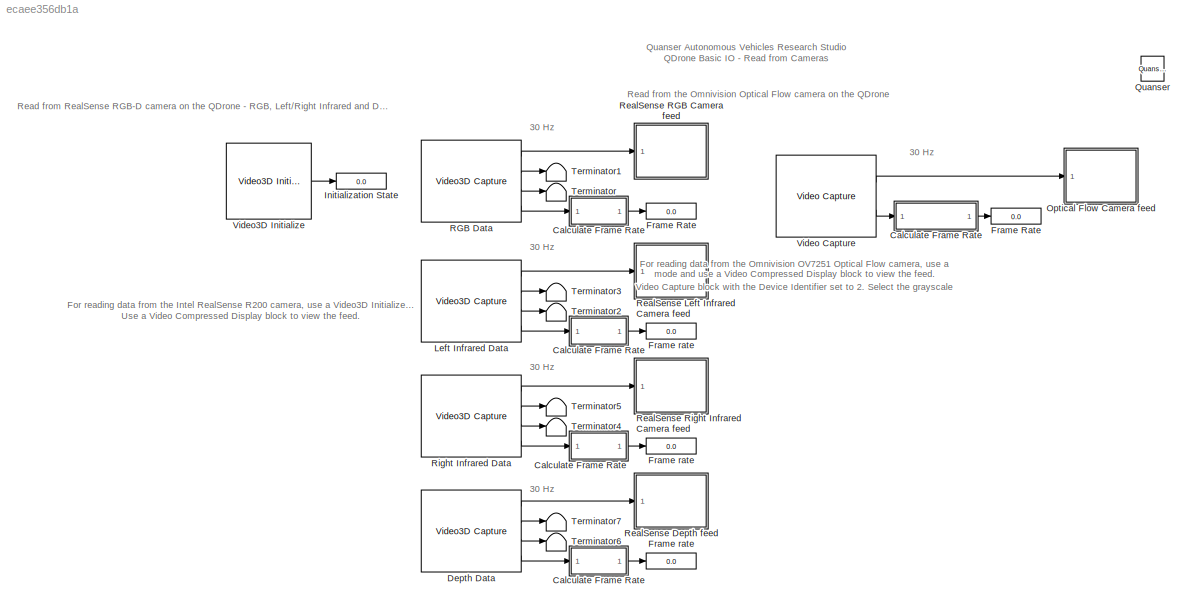
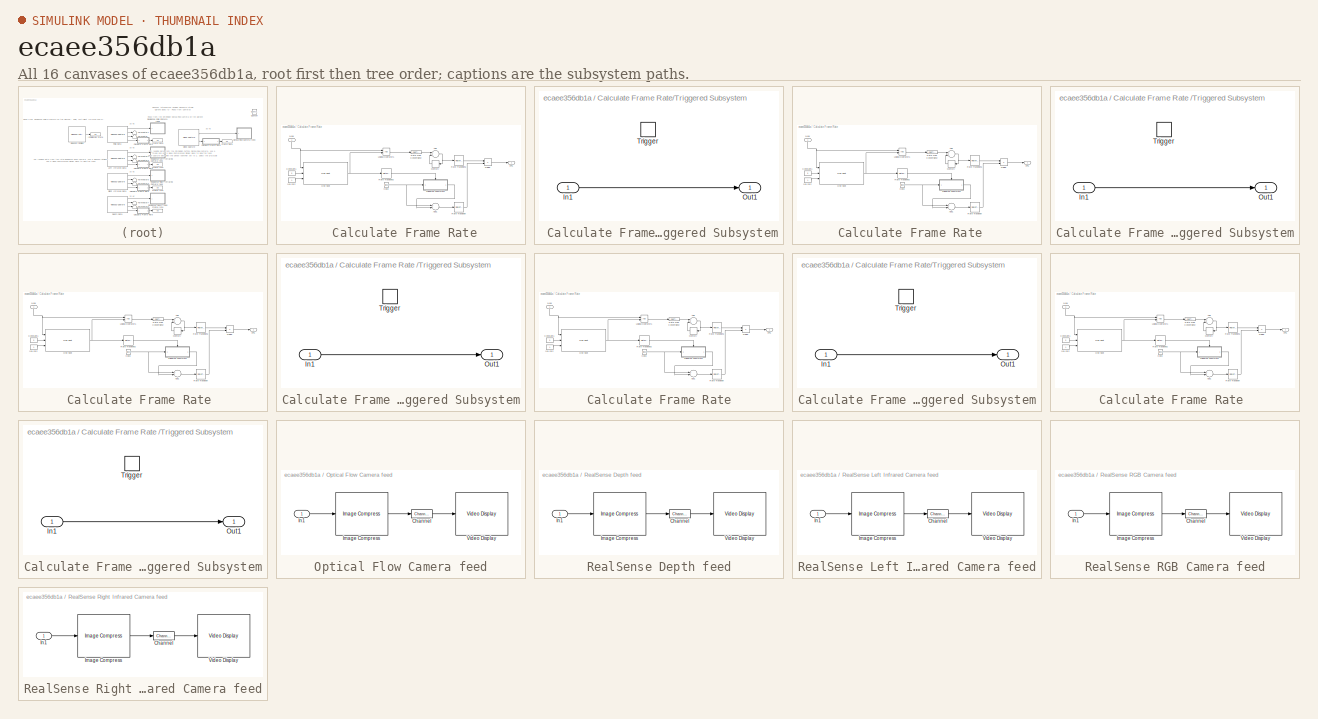
[diagram: thumbnail index - all 16 canvases of the model, root first then tree order]
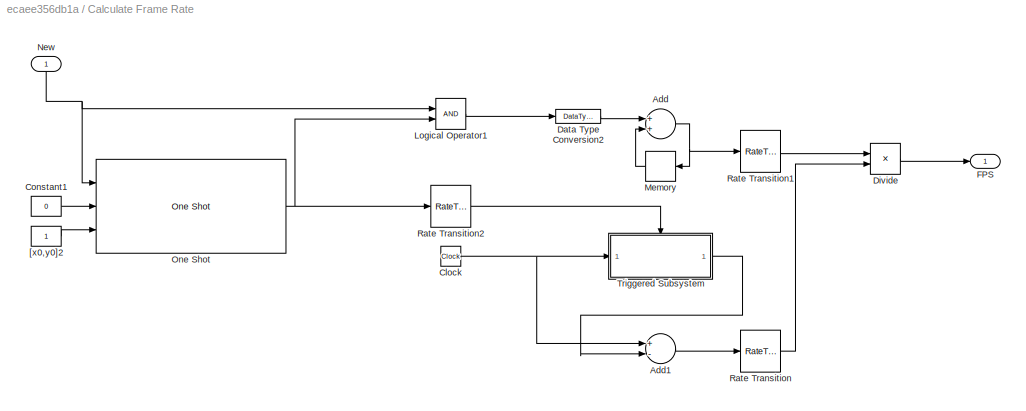
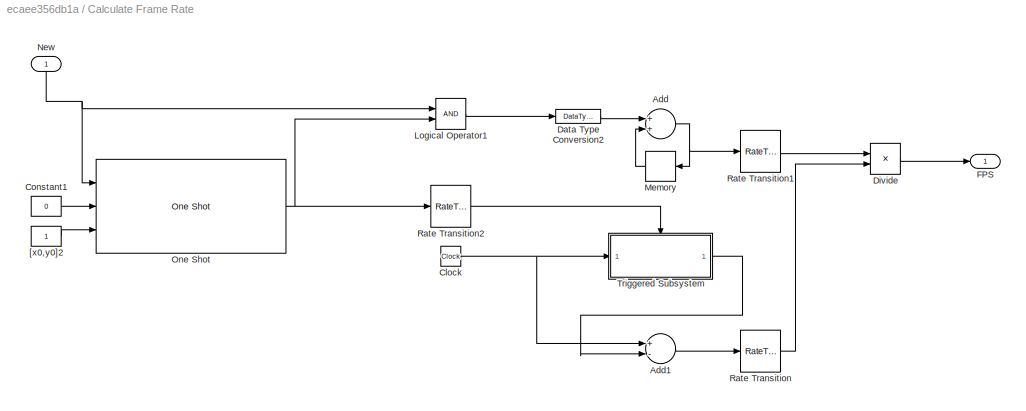
MODEL slx_ecaee356db1a
KIND model
CONFIG AbsTol = auto
CONFIG EnableMultiTasking = on
CONFIG FixedStep = 0.001
CONFIG MaxStep = auto
CONFIG MinStep = auto
CONFIG RelTol = 1e-3
CONFIG SampleTimeConstraint = Unconstrained
CONFIG Solver = ode2
CONFIG SolverName = ode2
CONFIG StartTime = 0.0
CONFIG StopTime = inf
WORKSPACE source: MAT-file member
WORKSPACE target_system = 1
BLOCK [Display]    Frame rate   
  Decimation = 1
  Ports = [1]
BLOCK [Display]   Frame Rate 
  Decimation = 1
  Ports = [1]
BLOCK [Display]   Frame rate  
  Decimation = 1
  Ports = [1]
BLOCK [SubSystem]  Calculate Frame Rate
  Ports = [1, 1]
  RequestExecContextInheritance = off
  Variant = off
BLOCK [Sum]  Calculate Frame Rate/Add
  InputSameDT = off
  OutDataTypeStr = Inherit: Inherit via internal rule
  Ports = [2, 1]
  SaturateOnIntegerOverflow = off
BLOCK [Sum]  Calculate Frame Rate/Add1
  InputSameDT = off
  Inputs = +-
  OutDataTypeStr = Inherit: Inherit via internal rule
  Ports = [2, 1]
  SaturateOnIntegerOverflow = off
BLOCK [Clock]  Calculate Frame Rate/Clock
  Decimation = 1
BLOCK [Constant]  Calculate Frame Rate/Constant1
  Value = 0
BLOCK [DataTypeConversion]  Calculate Frame Rate/Data Type Conversion2
  RndMeth = Floor
  SaturateOnIntegerOverflow = off
BLOCK [Product]  Calculate Frame Rate/Divide
  InputSameDT = off
  Inputs = */
  OutDataTypeStr = Inherit: Inherit via internal rule
  Ports = [2, 1]
  RndMeth = Floor
  SaturateOnIntegerOverflow = off
BLOCK [Outport]  Calculate Frame Rate/FPS
  IconDisplay = Port number
BLOCK [Logic]  Calculate Frame Rate/Logical Operator1
  AllPortsSameDT = off
  OutDataTypeStr = boolean
  Ports = [2, 1]
BLOCK [Memory]  Calculate Frame Rate/Memory
  InheritSampleTime = on
BLOCK [Inport]  Calculate Frame Rate/New
  IconDisplay = Port number
BLOCK [Reference]  Calculate Frame Rate/One Shot  REF=quarc_library/Discontinuities/One Shot
  Ports = [3, 1]
  SourceBlock = quarc_library/Discontinuities/One Shot
  SourceProductName = QUARC Targets
  SourceType = One Shot
BLOCK [RateTransition]  Calculate Frame Rate/Rate Transition
BLOCK [RateTransition]  Calculate Frame Rate/Rate Transition1
BLOCK [RateTransition]  Calculate Frame Rate/Rate Transition2
BLOCK [SubSystem]  Calculate Frame Rate/Triggered Subsystem
  Ports = [1, 1, 0, 1]
  RequestExecContextInheritance = off
  TreatAsAtomicUnit = on
  Variant = off
BLOCK [Inport]  Calculate Frame Rate/Triggered Subsystem/In1
  IconDisplay = Port number
BLOCK [Outport]  Calculate Frame Rate/Triggered Subsystem/Out1
  IconDisplay = Port number
BLOCK [TriggerPort]  Calculate Frame Rate/Triggered Subsystem/Trigger
  Ports = []
  StatesWhenEnabling = held
  VariantControl = Variant
BLOCK [Constant]  Calculate Frame Rate/[x0,y0]2
BLOCK [Display]  Frame rate 
  Decimation = 1
  Ports = [1]
BLOCK [SubSystem] Calculate Frame Rate
  Ports = [1, 1]
  RequestExecContextInheritance = off
  Variant = off
BLOCK [SubSystem] Calculate Frame Rate 
  Ports = [1, 1]
  RequestExecContextInheritance = off
  Variant = off
BLOCK [SubSystem] Calculate Frame Rate  
  Ports = [1, 1]
  RequestExecContextInheritance = off
  Variant = off
BLOCK [Sum] Calculate Frame Rate  /Add
  InputSameDT = off
  OutDataTypeStr = Inherit: Inherit via internal rule
  Ports = [2, 1]
  SaturateOnIntegerOverflow = off
BLOCK [Sum] Calculate Frame Rate  /Add1
  InputSameDT = off
  Inputs = +-
  OutDataTypeStr = Inherit: Inherit via internal rule
  Ports = [2, 1]
  SaturateOnIntegerOverflow = off
BLOCK [Clock] Calculate Frame Rate  /Clock
  Decimation = 1
BLOCK [Constant] Calculate Frame Rate  /Constant1
  Value = 0
BLOCK [DataTypeConversion] Calculate Frame Rate  /Data Type Conversion2
  RndMeth = Floor
  SaturateOnIntegerOverflow = off
BLOCK [Product] Calculate Frame Rate  /Divide
  InputSameDT = off
  Inputs = */
  OutDataTypeStr = Inherit: Inherit via internal rule
  Ports = [2, 1]
  RndMeth = Floor
  SaturateOnIntegerOverflow = off
BLOCK [Outport] Calculate Frame Rate  /FPS
  IconDisplay = Port number
BLOCK [Logic] Calculate Frame Rate  /Logical Operator1
  AllPortsSameDT = off
  OutDataTypeStr = boolean
  Ports = [2, 1]
BLOCK [Memory] Calculate Frame Rate  /Memory
  InheritSampleTime = on
BLOCK [Inport] Calculate Frame Rate  /New
  IconDisplay = Port number
BLOCK [Reference] Calculate Frame Rate  /One Shot  REF=quarc_library/Discontinuities/One Shot
  Ports = [3, 1]
  SourceBlock = quarc_library/Discontinuities/One Shot
  SourceProductName = QUARC Targets
  SourceType = One Shot
BLOCK [RateTransition] Calculate Frame Rate  /Rate Transition
BLOCK [RateTransition] Calculate Frame Rate  /Rate Transition1
BLOCK [RateTransition] Calculate Frame Rate  /Rate Transition2
BLOCK [SubSystem] Calculate Frame Rate  /Triggered Subsystem
  Ports = [1, 1, 0, 1]
  RequestExecContextInheritance = off
  TreatAsAtomicUnit = on
  Variant = off
BLOCK [Inport] Calculate Frame Rate  /Triggered Subsystem/In1
  IconDisplay = Port number
BLOCK [Outport] Calculate Frame Rate  /Triggered Subsystem/Out1
  IconDisplay = Port number
BLOCK [TriggerPort] Calculate Frame Rate  /Triggered Subsystem/Trigger
  Ports = []
  StatesWhenEnabling = held
  VariantControl = Variant
BLOCK [Constant] Calculate Frame Rate  /[x0,y0]2
BLOCK [Sum] Calculate Frame Rate /Add
  InputSameDT = off
  OutDataTypeStr = Inherit: Inherit via internal rule
  Ports = [2, 1]
  SaturateOnIntegerOverflow = off
BLOCK [Sum] Calculate Frame Rate /Add1
  InputSameDT = off
  Inputs = +-
  OutDataTypeStr = Inherit: Inherit via internal rule
  Ports = [2, 1]
  SaturateOnIntegerOverflow = off
BLOCK [Clock] Calculate Frame Rate /Clock
  Decimation = 1
BLOCK [Constant] Calculate Frame Rate /Constant1
  Value = 0
BLOCK [DataTypeConversion] Calculate Frame Rate /Data Type Conversion2
  RndMeth = Floor
  SaturateOnIntegerOverflow = off
BLOCK [Product] Calculate Frame Rate /Divide
  InputSameDT = off
  Inputs = */
  OutDataTypeStr = Inherit: Inherit via internal rule
  Ports = [2, 1]
  RndMeth = Floor
  SaturateOnIntegerOverflow = off
BLOCK [Outport] Calculate Frame Rate /FPS
  IconDisplay = Port number
BLOCK [Logic] Calculate Frame Rate /Logical Operator1
  AllPortsSameDT = off
  OutDataTypeStr = boolean
  Ports = [2, 1]
BLOCK [Memory] Calculate Frame Rate /Memory
  InheritSampleTime = on
BLOCK [Inport] Calculate Frame Rate /New
  IconDisplay = Port number
BLOCK [Reference] Calculate Frame Rate /One Shot  REF=quarc_library/Discontinuities/One Shot
  Ports = [3, 1]
  SourceBlock = quarc_library/Discontinuities/One Shot
  SourceProductName = QUARC Targets
  SourceType = One Shot
BLOCK [RateTransition] Calculate Frame Rate /Rate Transition
BLOCK [RateTransition] Calculate Frame Rate /Rate Transition1
BLOCK [RateTransition] Calculate Frame Rate /Rate Transition2
BLOCK [SubSystem] Calculate Frame Rate /Triggered Subsystem
  Ports = [1, 1, 0, 1]
  RequestExecContextInheritance = off
  TreatAsAtomicUnit = on
  Variant = off
BLOCK [Inport] Calculate Frame Rate /Triggered Subsystem/In1
  IconDisplay = Port number
BLOCK [Outport] Calculate Frame Rate /Triggered Subsystem/Out1
  IconDisplay = Port number
BLOCK [TriggerPort] Calculate Frame Rate /Triggered Subsystem/Trigger
  Ports = []
  StatesWhenEnabling = held
  VariantControl = Variant
BLOCK [Constant] Calculate Frame Rate /[x0,y0]2
BLOCK [Sum] Calculate Frame Rate/Add
  InputSameDT = off
  OutDataTypeStr = Inherit: Inherit via internal rule
  Ports = [2, 1]
  SaturateOnIntegerOverflow = off
BLOCK [Sum] Calculate Frame Rate/Add1
  InputSameDT = off
  Inputs = +-
  OutDataTypeStr = Inherit: Inherit via internal rule
  Ports = [2, 1]
  SaturateOnIntegerOverflow = off
BLOCK [Clock] Calculate Frame Rate/Clock
  Decimation = 1
BLOCK [Constant] Calculate Frame Rate/Constant1
  Value = 0
BLOCK [DataTypeConversion] Calculate Frame Rate/Data Type Conversion2
  RndMeth = Floor
  SaturateOnIntegerOverflow = off
BLOCK [Product] Calculate Frame Rate/Divide
  InputSameDT = off
  Inputs = */
  OutDataTypeStr = Inherit: Inherit via internal rule
  Ports = [2, 1]
  RndMeth = Floor
  SaturateOnIntegerOverflow = off
BLOCK [Outport] Calculate Frame Rate/FPS
  IconDisplay = Port number
BLOCK [Logic] Calculate Frame Rate/Logical Operator1
  AllPortsSameDT = off
  OutDataTypeStr = boolean
  Ports = [2, 1]
BLOCK [Memory] Calculate Frame Rate/Memory
  InheritSampleTime = on
BLOCK [Inport] Calculate Frame Rate/New
  IconDisplay = Port number
BLOCK [Reference] Calculate Frame Rate/One Shot  REF=quarc_library/Discontinuities/One Shot
  Ports = [3, 1]
  SourceBlock = quarc_library/Discontinuities/One Shot
  SourceProductName = QUARC Targets
  SourceType = One Shot
BLOCK [RateTransition] Calculate Frame Rate/Rate Transition
BLOCK [RateTransition] Calculate Frame Rate/Rate Transition1
BLOCK [RateTransition] Calculate Frame Rate/Rate Transition2
BLOCK [SubSystem] Calculate Frame Rate/Triggered Subsystem
  Ports = [1, 1, 0, 1]
  RequestExecContextInheritance = off
  TreatAsAtomicUnit = on
  Variant = off
BLOCK [Inport] Calculate Frame Rate/Triggered Subsystem/In1
  IconDisplay = Port number
BLOCK [Outport] Calculate Frame Rate/Triggered Subsystem/Out1
  IconDisplay = Port number
BLOCK [TriggerPort] Calculate Frame Rate/Triggered Subsystem/Trigger
  Ports = []
  StatesWhenEnabling = held
  VariantControl = Variant
BLOCK [Constant] Calculate Frame Rate/[x0,y0]2
BLOCK [Reference] Depth Data  REF=quarc_library/Multimedia/Video3D Capture
  Ports = [0, 4]
  SourceBlock = quarc_library/Multimedia/Video3D Capture
  SourceProductName = QUARC Targets
  SourceType = Video3D Capture
  UserDataPersistent = on
BLOCK [Display] Frame Rate
  Decimation = 1
  Ports = [1]
BLOCK [Display] Initialization State
  Decimation = 1
  Ports = [1]
BLOCK [Reference] Left Infrared Data  REF=quarc_library/Multimedia/Video3D Capture
  Ports = [0, 4]
  SourceBlock = quarc_library/Multimedia/Video3D Capture
  SourceProductName = QUARC Targets
  SourceType = Video3D Capture
  UserDataPersistent = on
BLOCK [SubSystem] Optical Flow Camera feed
  CopyFcn = set_param(gcbh, 'UserData', gcb);\nset_param(gcbh, 'LinkStatus', 'none');
  LoadFcn = set_param(gcbh, 'UserData', gcb);
  NameChangeFcn = video_display_show([get_param(gcbh, 'UserData'), '/Video Display'], 'rename', [gcb, '/Video Display']);\nvideo_display_show([gcb, '/Video Display'], 'add', gcb);\nset_param(gcbh, 'UserData', gcb);  <repeated x5 — deduplicated; at blocks: Optical Flow Camera feed, RealSense Depth feed, RealSense Left Infrared Camera feed, RealSense RGB Camera feed, RealSense Right Infrared Camera feed>
  OpenFcn = video_display_show([gcb, '/Video Display'], 'show', gcb);
  Ports = [1]
  PreDeleteFcn = video_display_show([gcb, '/Video Display'], 'delete');
  RequestExecContextInheritance = off
  StartFcn = video_display_show([gcb, '/Video Display'], 'add', gcb);
  UndoDeleteFcn = set_param(gcbh, 'UserData', gcb);
  Variant = off
BLOCK [Reference] Optical Flow Camera feed/Channel  REF=quarc_library/Signal Routing/Channel
  Ports = [1, 1]
  SourceBlock = quarc_library/Signal Routing/Channel
  SourceProductName = QUARC Targets
  SourceType = Channel
BLOCK [Reference] Optical Flow Camera feed/Image Compress  REF=quarc_library/Image Processing/Generic/Image Compress
  AttributesFormatString = (%<algorithm>)
  Ports = [1, 1]
  SourceBlock = quarc_library/Image Processing/Generic/Image Compress
  SourceProductName = QUARC Targets
  SourceType = Image Compress
BLOCK [Inport] Optical Flow Camera feed/In1
  IconDisplay = Port number
BLOCK [Reference] Optical Flow Camera feed/Video Display  REF=quarc_library/Multimedia/Video Display
  Ports = [1]
  SourceBlock = quarc_library/Multimedia/Video Display
  SourceProductName = QUARC Targets
  SourceType = Video Display
  Tag = Read_Cameras/Optical Flow Camera feed/Video Display
  UserDataPersistent = on
BLOCK [Reference] Quanser  REF=quarc_library/Logos/Quanser
  Ports = []
  SourceBlock = quarc_library/Logos/Quanser
  SourceProductName = QUARC Targets
  SourceType = Powered by Quanser
BLOCK [Reference] RGB Data  REF=quarc_library/Multimedia/Video3D Capture
  Ports = [0, 4]
  SourceBlock = quarc_library/Multimedia/Video3D Capture
  SourceProductName = QUARC Targets
  SourceType = Video3D Capture
  UserDataPersistent = on
BLOCK [SubSystem] RealSense Depth feed
  CopyFcn = set_param(gcbh, 'UserData', gcb);\nset_param(gcbh, 'LinkStatus', 'none');
  LoadFcn = set_param(gcbh, 'UserData', gcb);
  OpenFcn = video_display_show([gcb, '/Video Display'], 'show', gcb);
  Ports = [1]
  PreDeleteFcn = video_display_show([gcb, '/Video Display'], 'delete');
  RequestExecContextInheritance = off
  StartFcn = video_display_show([gcb, '/Video Display'], 'add', gcb);
  UndoDeleteFcn = set_param(gcbh, 'UserData', gcb);
  Variant = off
BLOCK [Reference] RealSense Depth feed/Channel  REF=quarc_library/Signal Routing/Channel
  Ports = [1, 1]
  SourceBlock = quarc_library/Signal Routing/Channel
  SourceProductName = QUARC Targets
  SourceType = Channel
BLOCK [Reference] RealSense Depth feed/Image Compress  REF=quarc_library/Image Processing/Generic/Image Compress
  AttributesFormatString = (%<algorithm>)
  Ports = [1, 1]
  SourceBlock = quarc_library/Image Processing/Generic/Image Compress
  SourceProductName = QUARC Targets
  SourceType = Image Compress
BLOCK [Inport] RealSense Depth feed/In1
  IconDisplay = Port number
BLOCK [Reference] RealSense Depth feed/Video Display  REF=quarc_library/Multimedia/Video Display
  Ports = [1]
  SourceBlock = quarc_library/Multimedia/Video Display
  SourceProductName = QUARC Targets
  SourceType = Video Display
  Tag = Read_Cameras/RealSense Depth feed/Video Display
  UserDataPersistent = on
BLOCK [SubSystem] RealSense Left Infrared Camera feed
  CopyFcn = set_param(gcbh, 'UserData', gcb);\nset_param(gcbh, 'LinkStatus', 'none');
  LoadFcn = set_param(gcbh, 'UserData', gcb);
  OpenFcn = video_display_show([gcb, '/Video Display'], 'show', gcb);
  Ports = [1]
  PreDeleteFcn = video_display_show([gcb, '/Video Display'], 'delete');
  RequestExecContextInheritance = off
  StartFcn = video_display_show([gcb, '/Video Display'], 'add', gcb);
  UndoDeleteFcn = set_param(gcbh, 'UserData', gcb);
  Variant = off
BLOCK [Reference] RealSense Left Infrared Camera feed/Channel  REF=quarc_library/Signal Routing/Channel
  Ports = [1, 1]
  SourceBlock = quarc_library/Signal Routing/Channel
  SourceProductName = QUARC Targets
  SourceType = Channel
BLOCK [Reference] RealSense Left Infrared Camera feed/Image Compress  REF=quarc_library/Image Processing/Generic/Image Compress
  AttributesFormatString = (%<algorithm>)
  Ports = [1, 1]
  SourceBlock = quarc_library/Image Processing/Generic/Image Compress
  SourceProductName = QUARC Targets
  SourceType = Image Compress
BLOCK [Inport] RealSense Left Infrared Camera feed/In1
  IconDisplay = Port number
BLOCK [Reference] RealSense Left Infrared Camera feed/Video Display  REF=quarc_library/Multimedia/Video Display
  Ports = [1]
  SourceBlock = quarc_library/Multimedia/Video Display
  SourceProductName = QUARC Targets
  SourceType = Video Display
  Tag = Read_Cameras/RealSense Left Infrared Camera feed/Video Display
  UserDataPersistent = on
BLOCK [SubSystem] RealSense RGB Camera feed
  CopyFcn = set_param(gcbh, 'UserData', gcb);\nset_param(gcbh, 'LinkStatus', 'none');
  LoadFcn = set_param(gcbh, 'UserData', gcb);
  OpenFcn = video_display_show([gcb, '/Video Display'], 'show', gcb);
  Ports = [1]
  PreDeleteFcn = video_display_show([gcb, '/Video Display'], 'delete');
  RequestExecContextInheritance = off
  StartFcn = video_display_show([gcb, '/Video Display'], 'add', gcb);
  UndoDeleteFcn = set_param(gcbh, 'UserData', gcb);
  Variant = off
BLOCK [Reference] RealSense RGB Camera feed/Channel  REF=quarc_library/Signal Routing/Channel
  Ports = [1, 1]
  SourceBlock = quarc_library/Signal Routing/Channel
  SourceProductName = QUARC Targets
  SourceType = Channel
BLOCK [Reference] RealSense RGB Camera feed/Image Compress  REF=quarc_library/Image Processing/Generic/Image Compress
  AttributesFormatString = (%<algorithm>)
  Ports = [1, 1]
  SourceBlock = quarc_library/Image Processing/Generic/Image Compress
  SourceProductName = QUARC Targets
  SourceType = Image Compress
BLOCK [Inport] RealSense RGB Camera feed/In1
  IconDisplay = Port number
BLOCK [Reference] RealSense RGB Camera feed/Video Display  REF=quarc_library/Multimedia/Video Display
  Ports = [1]
  SourceBlock = quarc_library/Multimedia/Video Display
  SourceProductName = QUARC Targets
  SourceType = Video Display
  Tag = Read_Cameras/RealSense RGB Camera feed/Video Display
  UserDataPersistent = on
BLOCK [SubSystem] RealSense Right Infrared Camera feed
  CopyFcn = set_param(gcbh, 'UserData', gcb);\nset_param(gcbh, 'LinkStatus', 'none');
  LoadFcn = set_param(gcbh, 'UserData', gcb);
  OpenFcn = video_display_show([gcb, '/Video Display'], 'show', gcb);
  Ports = [1]
  PreDeleteFcn = video_display_show([gcb, '/Video Display'], 'delete');
  RequestExecContextInheritance = off
  StartFcn = video_display_show([gcb, '/Video Display'], 'add', gcb);
  UndoDeleteFcn = set_param(gcbh, 'UserData', gcb);
  Variant = off
BLOCK [Reference] RealSense Right Infrared Camera feed/Channel  REF=quarc_library/Signal Routing/Channel
  Ports = [1, 1]
  SourceBlock = quarc_library/Signal Routing/Channel
  SourceProductName = QUARC Targets
  SourceType = Channel
BLOCK [Reference] RealSense Right Infrared Camera feed/Image Compress  REF=quarc_library/Image Processing/Generic/Image Compress
  AttributesFormatString = (%<algorithm>)
  Ports = [1, 1]
  SourceBlock = quarc_library/Image Processing/Generic/Image Compress
  SourceProductName = QUARC Targets
  SourceType = Image Compress
BLOCK [Inport] RealSense Right Infrared Camera feed/In1
  IconDisplay = Port number
BLOCK [Reference] RealSense Right Infrared Camera feed/Video Display  REF=quarc_library/Multimedia/Video Display
  Ports = [1]
  SourceBlock = quarc_library/Multimedia/Video Display
  SourceProductName = QUARC Targets
  SourceType = Video Display
  Tag = Read_Cameras/RealSense Right Infrared Camera feed/Video Display
  UserDataPersistent = on
BLOCK [Reference] Right Infrared Data  REF=quarc_library/Multimedia/Video3D Capture
  Ports = [0, 4]
  SourceBlock = quarc_library/Multimedia/Video3D Capture
  SourceProductName = QUARC Targets
  SourceType = Video3D Capture
  UserDataPersistent = on
BLOCK [Terminator] Terminator
BLOCK [Terminator] Terminator1
BLOCK [Terminator] Terminator2
BLOCK [Terminator] Terminator3
BLOCK [Terminator] Terminator4
BLOCK [Terminator] Terminator5
BLOCK [Terminator] Terminator6
BLOCK [Terminator] Terminator7
BLOCK [Reference] Video Capture  REF=quarc_library/Multimedia/Video Capture
  Ports = [0, 2]
  SourceBlock = quarc_library/Multimedia/Video Capture
  SourceProductName = QUARC Targets
  SourceType = Video Capture
BLOCK [Reference] Video3D Initialize  REF=quarc_library/Multimedia/Video3D Initialize
  Ports = [0, 1]
  SourceBlock = quarc_library/Multimedia/Video3D Initialize
  SourceProductName = QUARC Targets
  SourceType = Video3D Initialize
ANNOTATION (root): 30 Hz
ANNOTATION (root): Quanser Autonomous Vehicles Research Studio QDrone Basic IO - Read from Cameras
ANNOTATION (root): For reading data from the Intel RealSense R200 camera, use a Video3D Initialize block with the Device Identifier set to 0. Add Video3D Capture blocks as required and select the corresponding channel you want to view (RGB, Depth, Infrared, etc). Use a Video Compressed Display block to view the feed.
ANNOTATION (root): For reading data from the Omnivision OV7251 Optical Flow camera, use a Video Capture block with the Device Identifier set to 2. Select the grayscale mode and use a Video Compressed Display block to view the feed.
ANNOTATION (root): Read from RealSense RGB-D camera on the QDrone - RGB, Left/Right Infrared and Depth
ANNOTATION (root): Read from the Omnivision Optical Flow camera on the QDrone
LINE  Calculate Frame Rate/Add1:1 ->  Calculate Frame Rate/Rate Transition:1
NET  Calculate Frame Rate/Add:1 ->  Calculate Frame Rate/Memory:1,  Calculate Frame Rate/Rate Transition1:1
NET  Calculate Frame Rate/Clock:1 ->  Calculate Frame Rate/Add1:1,  Calculate Frame Rate/Triggered Subsystem:1
LINE  Calculate Frame Rate/Constant1:1 ->  Calculate Frame Rate/One Shot:2
LINE  Calculate Frame Rate/Data Type Conversion2:1 ->  Calculate Frame Rate/Add:1
LINE  Calculate Frame Rate/Divide:1 ->  Calculate Frame Rate/FPS:1
LINE  Calculate Frame Rate/Logical Operator1:1 ->  Calculate Frame Rate/Data Type Conversion2:1
LINE  Calculate Frame Rate/Memory:1 ->  Calculate Frame Rate/Add:2
NET  Calculate Frame Rate/New:1 ->  Calculate Frame Rate/Logical Operator1:1,  Calculate Frame Rate/One Shot:1
NET  Calculate Frame Rate/One Shot:1 ->  Calculate Frame Rate/Logical Operator1:2,  Calculate Frame Rate/Rate Transition2:1
LINE  Calculate Frame Rate/Rate Transition1:1 ->  Calculate Frame Rate/Divide:1
LINE  Calculate Frame Rate/Rate Transition2:1 ->  Calculate Frame Rate/Triggered Subsystem:trigger
LINE  Calculate Frame Rate/Rate Transition:1 ->  Calculate Frame Rate/Divide:2
LINE  Calculate Frame Rate/Triggered Subsystem/In1:1 ->  Calculate Frame Rate/Triggered Subsystem/Out1:1
LINE  Calculate Frame Rate/Triggered Subsystem:1 ->  Calculate Frame Rate/Add1:2
LINE  Calculate Frame Rate/[x0,y0]2:1 ->  Calculate Frame Rate/One Shot:3
LINE  Calculate Frame Rate:1 ->   Frame Rate :1
LINE Calculate Frame Rate  /Add1:1 -> Calculate Frame Rate  /Rate Transition:1
NET Calculate Frame Rate  /Add:1 -> Calculate Frame Rate  /Memory:1, Calculate Frame Rate  /Rate Transition1:1
NET Calculate Frame Rate  /Clock:1 -> Calculate Frame Rate  /Add1:1, Calculate Frame Rate  /Triggered Subsystem:1
LINE Calculate Frame Rate  /Constant1:1 -> Calculate Frame Rate  /One Shot:2
LINE Calculate Frame Rate  /Data Type Conversion2:1 -> Calculate Frame Rate  /Add:1
LINE Calculate Frame Rate  /Divide:1 -> Calculate Frame Rate  /FPS:1
LINE Calculate Frame Rate  /Logical Operator1:1 -> Calculate Frame Rate  /Data Type Conversion2:1
LINE Calculate Frame Rate  /Memory:1 -> Calculate Frame Rate  /Add:2
NET Calculate Frame Rate  /New:1 -> Calculate Frame Rate  /Logical Operator1:1, Calculate Frame Rate  /One Shot:1
NET Calculate Frame Rate  /One Shot:1 -> Calculate Frame Rate  /Logical Operator1:2, Calculate Frame Rate  /Rate Transition2:1
LINE Calculate Frame Rate  /Rate Transition1:1 -> Calculate Frame Rate  /Divide:1
LINE Calculate Frame Rate  /Rate Transition2:1 -> Calculate Frame Rate  /Triggered Subsystem:trigger
LINE Calculate Frame Rate  /Rate Transition:1 -> Calculate Frame Rate  /Divide:2
LINE Calculate Frame Rate  /Triggered Subsystem/In1:1 -> Calculate Frame Rate  /Triggered Subsystem/Out1:1
LINE Calculate Frame Rate  /Triggered Subsystem:1 -> Calculate Frame Rate  /Add1:2
LINE Calculate Frame Rate  /[x0,y0]2:1 -> Calculate Frame Rate  /One Shot:3
LINE Calculate Frame Rate  :1 ->   Frame rate  :1
LINE Calculate Frame Rate /Add1:1 -> Calculate Frame Rate /Rate Transition:1
NET Calculate Frame Rate /Add:1 -> Calculate Frame Rate /Memory:1, Calculate Frame Rate /Rate Transition1:1
NET Calculate Frame Rate /Clock:1 -> Calculate Frame Rate /Add1:1, Calculate Frame Rate /Triggered Subsystem:1
LINE Calculate Frame Rate /Constant1:1 -> Calculate Frame Rate /One Shot:2
LINE Calculate Frame Rate /Data Type Conversion2:1 -> Calculate Frame Rate /Add:1
LINE Calculate Frame Rate /Divide:1 -> Calculate Frame Rate /FPS:1
LINE Calculate Frame Rate /Logical Operator1:1 -> Calculate Frame Rate /Data Type Conversion2:1
LINE Calculate Frame Rate /Memory:1 -> Calculate Frame Rate /Add:2
NET Calculate Frame Rate /New:1 -> Calculate Frame Rate /Logical Operator1:1, Calculate Frame Rate /One Shot:1
NET Calculate Frame Rate /One Shot:1 -> Calculate Frame Rate /Logical Operator1:2, Calculate Frame Rate /Rate Transition2:1
LINE Calculate Frame Rate /Rate Transition1:1 -> Calculate Frame Rate /Divide:1
LINE Calculate Frame Rate /Rate Transition2:1 -> Calculate Frame Rate /Triggered Subsystem:trigger
LINE Calculate Frame Rate /Rate Transition:1 -> Calculate Frame Rate /Divide:2
LINE Calculate Frame Rate /Triggered Subsystem/In1:1 -> Calculate Frame Rate /Triggered Subsystem/Out1:1
LINE Calculate Frame Rate /Triggered Subsystem:1 -> Calculate Frame Rate /Add1:2
LINE Calculate Frame Rate /[x0,y0]2:1 -> Calculate Frame Rate /One Shot:3
NET Calculate Frame Rate :1 ->    Frame rate   :1,  Frame rate :1
LINE Calculate Frame Rate/Add1:1 -> Calculate Frame Rate/Rate Transition:1
NET Calculate Frame Rate/Add:1 -> Calculate Frame Rate/Memory:1, Calculate Frame Rate/Rate Transition1:1
NET Calculate Frame Rate/Clock:1 -> Calculate Frame Rate/Add1:1, Calculate Frame Rate/Triggered Subsystem:1
LINE Calculate Frame Rate/Constant1:1 -> Calculate Frame Rate/One Shot:2
LINE Calculate Frame Rate/Data Type Conversion2:1 -> Calculate Frame Rate/Add:1
LINE Calculate Frame Rate/Divide:1 -> Calculate Frame Rate/FPS:1
LINE Calculate Frame Rate/Logical Operator1:1 -> Calculate Frame Rate/Data Type Conversion2:1
LINE Calculate Frame Rate/Memory:1 -> Calculate Frame Rate/Add:2
NET Calculate Frame Rate/New:1 -> Calculate Frame Rate/Logical Operator1:1, Calculate Frame Rate/One Shot:1
NET Calculate Frame Rate/One Shot:1 -> Calculate Frame Rate/Logical Operator1:2, Calculate Frame Rate/Rate Transition2:1
LINE Calculate Frame Rate/Rate Transition1:1 -> Calculate Frame Rate/Divide:1
LINE Calculate Frame Rate/Rate Transition2:1 -> Calculate Frame Rate/Triggered Subsystem:trigger
LINE Calculate Frame Rate/Rate Transition:1 -> Calculate Frame Rate/Divide:2
LINE Calculate Frame Rate/Triggered Subsystem/In1:1 -> Calculate Frame Rate/Triggered Subsystem/Out1:1
LINE Calculate Frame Rate/Triggered Subsystem:1 -> Calculate Frame Rate/Add1:2
LINE Calculate Frame Rate/[x0,y0]2:1 -> Calculate Frame Rate/One Shot:3
LINE Calculate Frame Rate:1 -> Frame Rate:1
LINE Depth Data:1 -> RealSense Depth feed:1
LINE Depth Data:2 -> Terminator7:1
LINE Depth Data:3 -> Terminator6:1
LINE Depth Data:4 -> Calculate Frame Rate :1
LINE Left Infrared Data:1 -> RealSense Left Infrared Camera feed:1
LINE Left Infrared Data:2 -> Terminator3:1
LINE Left Infrared Data:3 -> Terminator2:1
LINE Left Infrared Data:4 -> Calculate Frame Rate :1
LINE RGB Data:1 -> RealSense RGB Camera feed:1
LINE RGB Data:2 -> Terminator1:1
LINE RGB Data:3 -> Terminator:1
LINE RGB Data:4 -> Calculate Frame Rate:1
LINE Right Infrared Data:1 -> RealSense Right Infrared Camera feed:1
LINE Right Infrared Data:2 -> Terminator5:1
LINE Right Infrared Data:3 -> Terminator4:1
LINE Right Infrared Data:4 -> Calculate Frame Rate  :1
LINE Video Capture:1 -> Optical Flow Camera feed:1
LINE Video Capture:2 ->  Calculate Frame Rate:1
LINE Video3D Initialize:1 -> Initialization State:1
note: NET lines group one-source signal fan-out (src -> all destinations, sorted); 1:1 wires keep LINE
